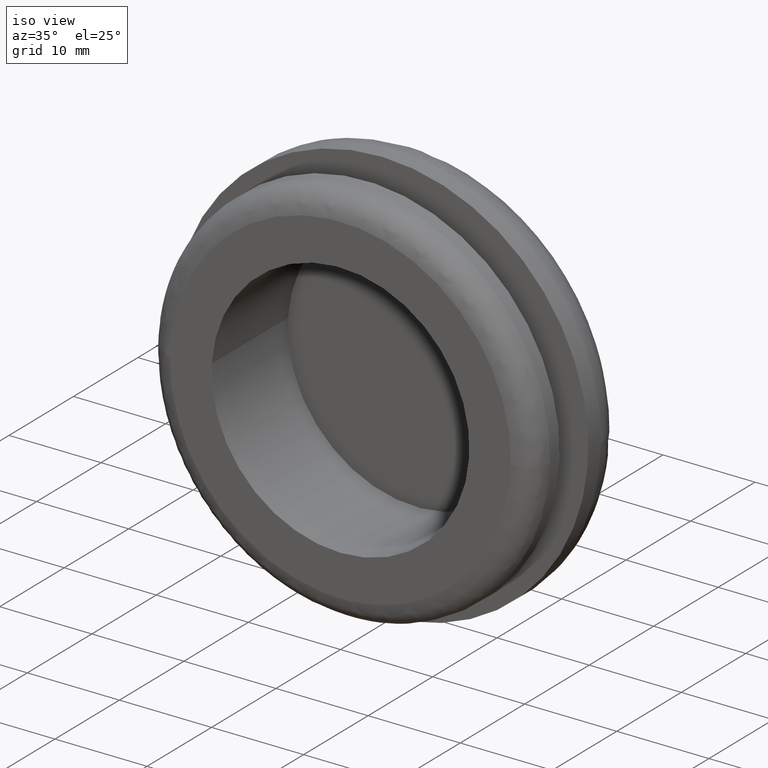
[diagram: clean part render]
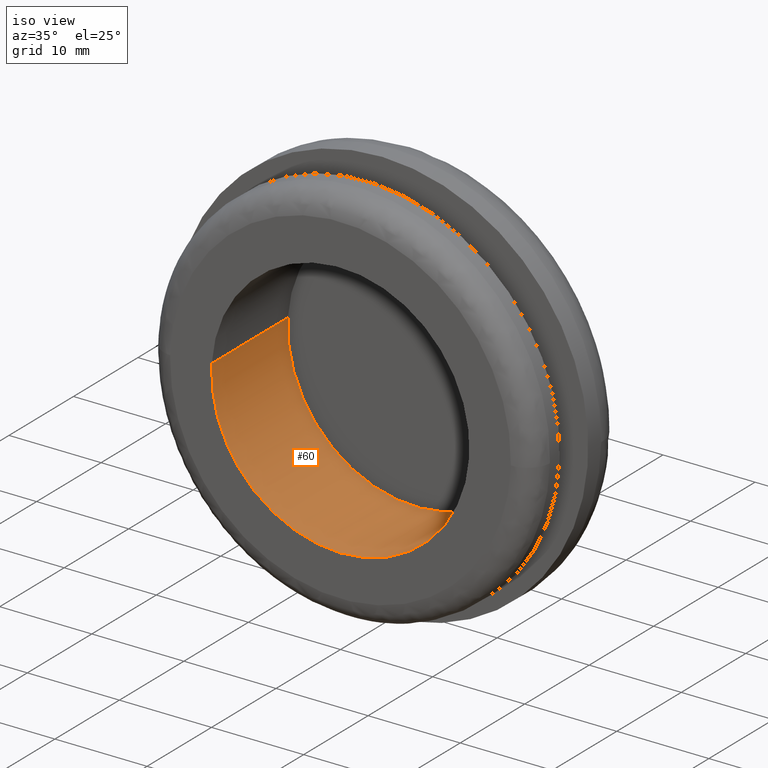
[diagram: same view with one face highlighted and labeled with its STEP entity id]
A machine part, iso view. The second image highlights one B-rep face of the part: STEP entity #60.
In plain terms, the highlighted cylindrical surface (partial cylindrical patch) has radius 14 mm, axis along (-0, 1, -0).
Its self-contained STEP definition (entity closure, byte-faithful):
#60=ADVANCED_FACE('',(#273),#272,.F.);
#272=CYLINDRICAL_SURFACE('',#576,1.40000000000E+001);
#273=FACE_OUTER_BOUND('',#577,.T.);
#573=CARTESIAN_POINT('',(9.93252555828E-017,1.20950000000E+001,1.12435321282E-015));
#574=DIRECTION('',(-3.97031368853E-018,1.00000000000E+000,-6.49140550023E-017));
#575=DIRECTION('',(-9.98134798422E-001,-1.54074395551E-033,6.10485395349E-002));
#576=AXIS2_PLACEMENT_3D('',#573,#574,#575);
#577=EDGE_LOOP('',(#770,#771,#772,#773,#774));
#770=ORIENTED_EDGE('',*,*,#821,.F.);
#771=ORIENTED_EDGE('',*,*,#872,.F.);
#772=ORIENTED_EDGE('',*,*,#825,.T.);
#773=ORIENTED_EDGE('',*,*,#827,.T.);
#774=ORIENTED_EDGE('',*,*,#873,.T.);
#821=EDGE_CURVE('',#989,#990,#991,.T.);
#825=EDGE_CURVE('',#1017,#1018,#1019,.T.);
#827=EDGE_CURVE('',#1018,#1025,#1032,.T.);
#872=EDGE_CURVE('',#1017,#989,#1334,.T.);
#873=EDGE_CURVE('',#1025,#990,#1340,.T.);
#989=VERTEX_POINT('',#1524);
#990=VERTEX_POINT('',#1525);
#991=CIRCLE('',#1529,1.40000000000E+001);
#1017=VERTEX_POINT('',#1544);
#1018=VERTEX_POINT('',#1545);
#1019=CIRCLE('',#1549,1.40000000000E+001);
#1025=VERTEX_POINT('',#1550);
#1032=CIRCLE('',#1558,1.40000000000E+001);
#1334=(BOUNDED_CURVE() B_SPLINE_CURVE(1,(#1754,#1755),.UNSPECIFIED.,.F.,.F.) B_SPLINE_CURVE_WITH_KNOTS((2,2),(8.33333343261E-002,9.16666667006E-001),.UNSPECIFIED.) CURVE() GEOMETRIC_REPRESENTATION_ITEM() RATIONAL_B_SPLINE_CURVE((1.00000000000E+000,1.00000000000E+000)) REPRESENTATION_ITEM('') );
#1340=(BOUNDED_CURVE() B_SPLINE_CURVE(1,(#1756,#1757),.UNSPECIFIED.,.F.,.F.) B_SPLINE_CURVE_WITH_KNOTS((2,2),(8.33333333333E-002,9.16666666667E-001),.UNSPECIFIED.) CURVE() GEOMETRIC_REPRESENTATION_ITEM() RATIONAL_B_SPLINE_CURVE((7.50000000000E-001,7.50000000000E-001)) REPRESENTATION_ITEM('') );
#1524=CARTESIAN_POINT('',(-1.39738875513E+001,1.18000000000E+001,8.54673449164E-001));
#1525=CARTESIAN_POINT('',(1.39738875513E+001,1.18000000000E+001,-8.54673449166E-001));
#1526=CARTESIAN_POINT('',(-2.58459920133E-013,1.18000000000E+001,-1.15107923193E-012));
#1527=DIRECTION('',(-8.97195690676E-016,-1.00000000000E+000,-1.01506105109E-015));
#1528=DIRECTION('',(-9.98134825090E-001,8.33554711667E-016,6.10481035118E-002));
#1529=AXIS2_PLACEMENT_3D('',#1526,#1527,#1528);
#1544=CARTESIAN_POINT('',(-1.39738871779E+001,-2.57167258235E-015,8.54679553480E-001));
#1545=CARTESIAN_POINT('',(-3.55271367880E-015,-3.22872073708E-015,-1.40000000000E+001));
#1546=CARTESIAN_POINT('',(-1.45661260831E-013,-2.90019985786E-015,1.09334763465E-012));
#1547=DIRECTION('',(-2.20748566025E-017,-1.00000000000E+000,2.34657770873E-017));
#1548=DIRECTION('',(1.05124242644E-014,-2.34657770873E-017,-1.00000000000E+000));
#1549=AXIS2_PLACEMENT_3D('',#1546,#1547,#1548);
#1550=CARTESIAN_POINT('',(1.39737624423E+001,-3.22877217899E-015,-8.56716525762E-001));
#1555=CARTESIAN_POINT('',(-1.45661260831E-013,-2.90019985786E-015,1.09334763465E-012));
#1556=DIRECTION('',(-2.20748566025E-017,-1.00000000000E+000,2.34657770873E-017));
#1557=DIRECTION('',(1.05124242644E-014,-2.34657770873E-017,-1.00000000000E+000));
#1558=AXIS2_PLACEMENT_3D('',#1555,#1556,#1557);
#1754=CARTESIAN_POINT('',(-1.39738871779E+001,1.40572522511E-008,8.54679553488E-001));
#1755=CARTESIAN_POINT('',(-1.39738871779E+001,1.18000000048E+001,8.54679553488E-001));
#1756=CARTESIAN_POINT('',(1.39738871779E+001,-2.81256499572E-015,-8.54679553488E-001));
#1757=CARTESIAN_POINT('',(1.39738871779E+001,1.18000000000E+001,-8.54679553488E-001));